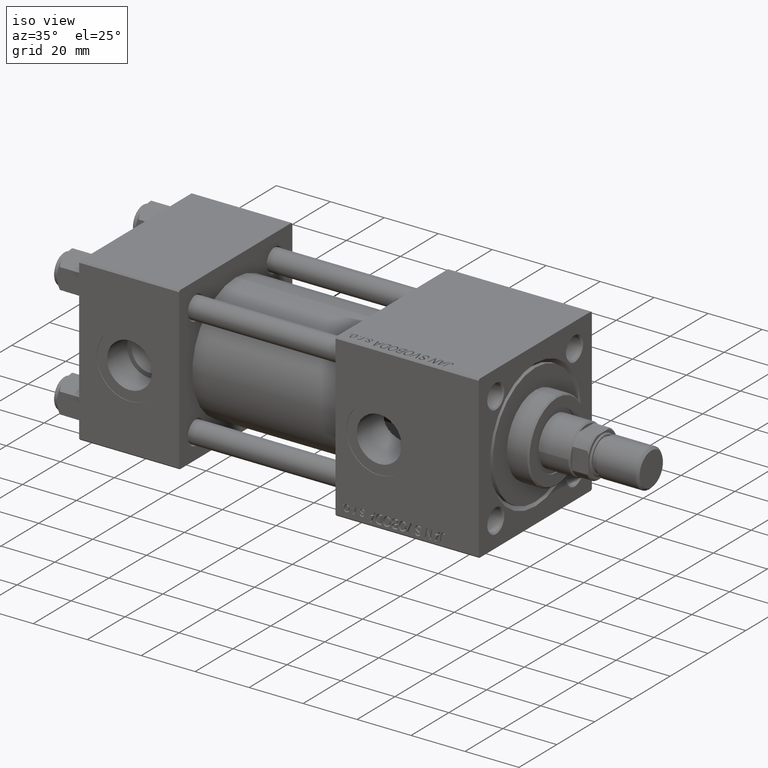
[diagram: clean part render]
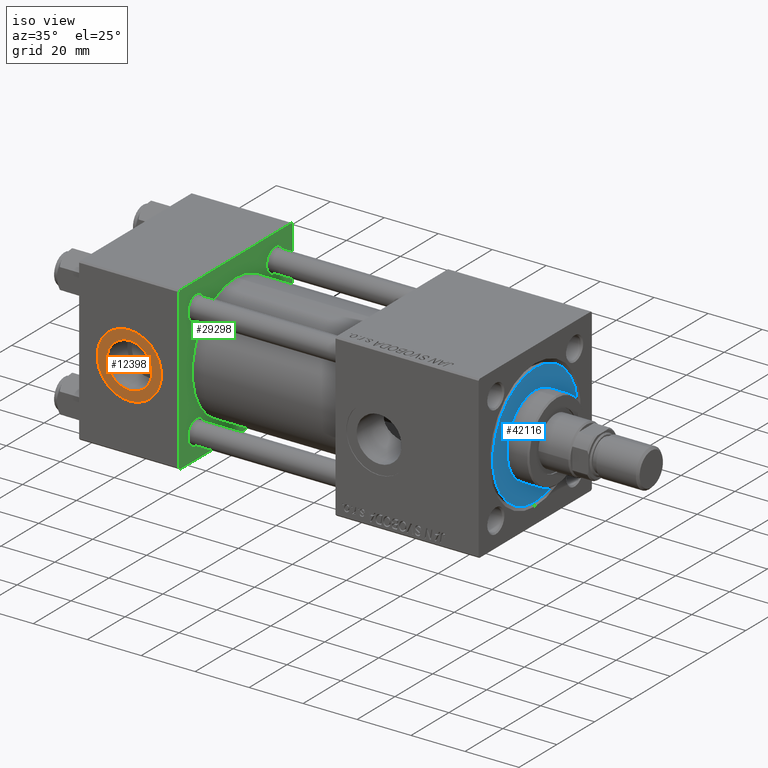
[diagram: same view with three faces highlighted in distinct colors, each labeled with its STEP entity id]
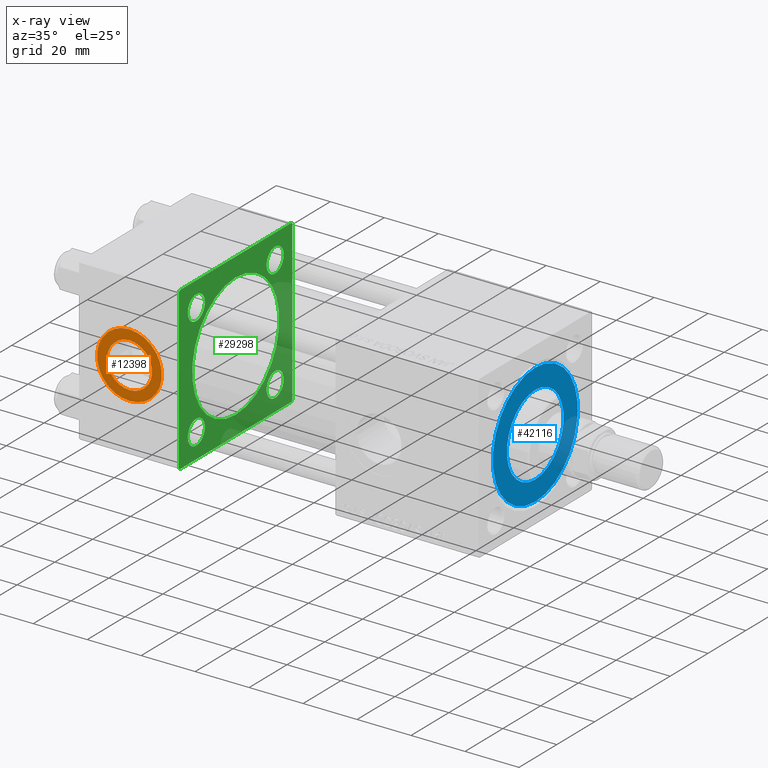
[diagram: x-ray of the same camera — body ghosted, the three highlighted faces saturated]
A machine part, iso view with three faces highlighted in distinct colors.
The next image is the same camera in x-ray (body ghosted, the three faces saturated) — at least one of them is partly hidden behind the body in this view.
Their STEP definitions:

[orange] entity #12398 — the highlighted planar face has unit normal (0, -1, -0).
#3215 = DIRECTION ( 'NONE',  ( 0.000000000000000000, -1.000000000000000000, -8.673617379884036705E-17 ) ) ;
#3545 = AXIS2_PLACEMENT_3D ( 'NONE', #35167, #51462, #7973 ) ;
#4369 = DIRECTION ( 'NONE',  ( 0.000000000000000000, 0.000000000000000000, -1.000000000000000000 ) ) ;
#4836 = ORIENTED_EDGE ( 'NONE', *, *, #43128, .T. ) ;
#5117 = DIRECTION ( 'NONE',  ( 0.000000000000000000, 8.673617379884036705E-17, -1.000000000000000000 ) ) ;
#7575 = DIRECTION ( 'NONE',  ( 0.000000000000000000, -1.000000000000000000, -8.673617379884036705E-17 ) ) ;
#7973 = DIRECTION ( 'NONE',  ( 0.000000000000000000, 0.000000000000000000, -1.000000000000000000 ) ) ;
#7995 = VERTEX_POINT ( 'NONE', #10125 ) ;
#9300 = AXIS2_PLACEMENT_3D ( 'NONE', #44113, #7575, #4369 ) ;
#10125 = CARTESIAN_POINT ( 'NONE',  ( 18.50000000000000000, -29.80000000000000071, 8.330000000000001847 ) ) ;
#10163 = CIRCLE ( 'NONE', #9300, 8.330000000000001847 ) ;
#11229 = CARTESIAN_POINT ( 'NONE',  ( 18.50000000000000000, -29.80000000000000071, 1.734723475976807403E-17 ) ) ;
#12087 = VERTEX_POINT ( 'NONE', #17417 ) ;
#12398 = ADVANCED_FACE ( 'NONE', ( #28858, #16336 ), #20608, .T. ) ;
#14922 = EDGE_LOOP ( 'NONE', ( #22571, #32532 ) ) ;
#16336 = FACE_OUTER_BOUND ( 'NONE', #34859, .T. ) ;
#16886 = AXIS2_PLACEMENT_3D ( 'NONE', #24861, #41662, #5117 ) ;
#17417 = CARTESIAN_POINT ( 'NONE',  ( 18.50000000000000000, -29.80000000000000071, -8.330000000000001847 ) ) ;
#18570 = CARTESIAN_POINT ( 'NONE',  ( 18.50000000000000000, -29.80000000000000071, 12.00000000000000178 ) ) ;
#20608 = PLANE ( 'NONE',  #16886 ) ;
#22571 = ORIENTED_EDGE ( 'NONE', *, *, #28507, .F. ) ;
#24861 = CARTESIAN_POINT ( 'NONE',  ( 18.50000000000000000, -29.80000000000000071, 1.734723475976807403E-17 ) ) ;
#25349 = DIRECTION ( 'NONE',  ( 0.000000000000000000, 0.000000000000000000, -1.000000000000000000 ) ) ;
#27986 = CARTESIAN_POINT ( 'NONE',  ( 18.50000000000000000, -29.80000000000000071, -12.00000000000000178 ) ) ;
#28474 = AXIS2_PLACEMENT_3D ( 'NONE', #41369, #33102, #25349 ) ;
#28507 = EDGE_CURVE ( 'NONE', #12087, #7995, #10163, .T. ) ;
#28858 = FACE_BOUND ( 'NONE', #14922, .T. ) ;
#32532 = ORIENTED_EDGE ( 'NONE', *, *, #43392, .F. ) ;
#33102 = DIRECTION ( 'NONE',  ( 0.000000000000000000, -1.000000000000000000, -8.673617379884036705E-17 ) ) ;
#34353 = CIRCLE ( 'NONE', #47994, 12.00000000000000178 ) ;
#34859 = EDGE_LOOP ( 'NONE', ( #4836, #40473 ) ) ;
#35167 = CARTESIAN_POINT ( 'NONE',  ( 18.50000000000000000, -29.80000000000000071, 1.734723475976807403E-17 ) ) ;
#35268 = CIRCLE ( 'NONE', #28474, 8.330000000000001847 ) ;
#40473 = ORIENTED_EDGE ( 'NONE', *, *, #49544, .T. ) ;
#41369 = CARTESIAN_POINT ( 'NONE',  ( 18.50000000000000000, -29.80000000000000071, 1.734723475976808635E-17 ) ) ;
#41662 = DIRECTION ( 'NONE',  ( 0.000000000000000000, -1.000000000000000000, -8.673617379884036705E-17 ) ) ;
#42753 = VERTEX_POINT ( 'NONE', #18570 ) ;
#43128 = EDGE_CURVE ( 'NONE', #45244, #42753, #34353, .T. ) ;
#43392 = EDGE_CURVE ( 'NONE', #7995, #12087, #35268, .T. ) ;
#44028 = DIRECTION ( 'NONE',  ( 0.000000000000000000, 0.000000000000000000, -1.000000000000000000 ) ) ;
#44113 = CARTESIAN_POINT ( 'NONE',  ( 18.50000000000000000, -29.80000000000000071, 1.734723475976808635E-17 ) ) ;
#45244 = VERTEX_POINT ( 'NONE', #27986 ) ;
#45301 = CIRCLE ( 'NONE', #3545, 12.00000000000000178 ) ;
#47994 = AXIS2_PLACEMENT_3D ( 'NONE', #11229, #3215, #44028 ) ;
#49544 = EDGE_CURVE ( 'NONE', #42753, #45244, #45301, .T. ) ;
#51462 = DIRECTION ( 'NONE',  ( 0.000000000000000000, -1.000000000000000000, -8.673617379884036705E-17 ) ) ;

[blue] entity #42116 — the highlighted planar face has unit normal (1, 0, 0).
#1508 = CIRCLE ( 'NONE', #21123, 22.50000000000000355 ) ;
#3321 = ORIENTED_EDGE ( 'NONE', *, *, #42093, .F. ) ;
#4949 = DIRECTION ( 'NONE',  ( 1.000000000000000000, 0.000000000000000000, 0.000000000000000000 ) ) ;
#6687 = DIRECTION ( 'NONE',  ( 1.000000000000000000, 0.000000000000000000, 0.000000000000000000 ) ) ;
#8089 = ORIENTED_EDGE ( 'NONE', *, *, #11650, .T. ) ;
#8323 = VERTEX_POINT ( 'NONE', #13038 ) ;
#10700 = DIRECTION ( 'NONE',  ( 0.000000000000000000, 0.000000000000000000, 1.000000000000000000 ) ) ;
#10742 = AXIS2_PLACEMENT_3D ( 'NONE', #42015, #12970, #4949 ) ;
#11391 = VERTEX_POINT ( 'NONE', #47169 ) ;
#11650 = EDGE_CURVE ( 'NONE', #11391, #8323, #1508, .T. ) ;
#12970 = DIRECTION ( 'NONE',  ( 0.000000000000000000, 0.000000000000000000, 1.000000000000000000 ) ) ;
#13038 = CARTESIAN_POINT ( 'NONE',  ( 22.50000000000000355, 2.755455298081545172E-15, 28.69999999999999929 ) ) ;
#14755 = CIRCLE ( 'NONE', #21580, 15.00000000000000000 ) ;
#15881 = AXIS2_PLACEMENT_3D ( 'NONE', #26597, #29091, #17101 ) ;
#17101 = DIRECTION ( 'NONE',  ( 1.000000000000000000, 0.000000000000000000, 0.000000000000000000 ) ) ;
#19105 = DIRECTION ( 'NONE',  ( 0.000000000000000000, 0.000000000000000000, 1.000000000000000000 ) ) ;
#20033 = CARTESIAN_POINT ( 'NONE',  ( 15.00000000000000000, 1.836970198721029589E-15, 28.69999999999999929 ) ) ;
#21123 = AXIS2_PLACEMENT_3D ( 'NONE', #27111, #19105, #51653 ) ;
#21580 = AXIS2_PLACEMENT_3D ( 'NONE', #43234, #10700, #6687 ) ;
#21991 = EDGE_CURVE ( 'NONE', #31963, #48989, #33733, .T. ) ;
#22531 = EDGE_CURVE ( 'NONE', #8323, #11391, #38872, .T. ) ;
#26597 = CARTESIAN_POINT ( 'NONE',  ( 0.000000000000000000, 0.000000000000000000, 28.69999999999999929 ) ) ;
#27111 = CARTESIAN_POINT ( 'NONE',  ( 0.000000000000000000, 0.000000000000000000, 28.69999999999999929 ) ) ;
#27488 = PLANE ( 'NONE',  #29231 ) ;
#28087 = ORIENTED_EDGE ( 'NONE', *, *, #21991, .F. ) ;
#29091 = DIRECTION ( 'NONE',  ( 0.000000000000000000, 0.000000000000000000, 1.000000000000000000 ) ) ;
#29231 = AXIS2_PLACEMENT_3D ( 'NONE', #52297, #36002, #43761 ) ;
#31963 = VERTEX_POINT ( 'NONE', #50412 ) ;
#33733 = CIRCLE ( 'NONE', #10742, 15.00000000000000000 ) ;
#36002 = DIRECTION ( 'NONE',  ( 0.000000000000000000, 0.000000000000000000, 1.000000000000000000 ) ) ;
#38872 = CIRCLE ( 'NONE', #15881, 22.50000000000000355 ) ;
#38998 = EDGE_LOOP ( 'NONE', ( #28087, #3321 ) ) ;
#42015 = CARTESIAN_POINT ( 'NONE',  ( 0.000000000000000000, 0.000000000000000000, 28.69999999999999929 ) ) ;
#42093 = EDGE_CURVE ( 'NONE', #48989, #31963, #14755, .T. ) ;
#42116 = ADVANCED_FACE ( 'NONE', ( #47489, #47759 ), #27488, .T. ) ;
#43234 = CARTESIAN_POINT ( 'NONE',  ( 0.000000000000000000, 0.000000000000000000, 28.69999999999999929 ) ) ;
#43761 = DIRECTION ( 'NONE',  ( 1.000000000000000000, 0.000000000000000000, -0.000000000000000000 ) ) ;
#45749 = ORIENTED_EDGE ( 'NONE', *, *, #22531, .T. ) ;
#47169 = CARTESIAN_POINT ( 'NONE',  ( -22.50000000000000355, 0.000000000000000000, 28.69999999999999929 ) ) ;
#47399 = EDGE_LOOP ( 'NONE', ( #8089, #45749 ) ) ;
#47489 = FACE_BOUND ( 'NONE', #38998, .T. ) ;
#47759 = FACE_OUTER_BOUND ( 'NONE', #47399, .T. ) ;
#48989 = VERTEX_POINT ( 'NONE', #20033 ) ;
#50412 = CARTESIAN_POINT ( 'NONE',  ( -15.00000000000000000, 0.000000000000000000, 28.69999999999999929 ) ) ;
#51653 = DIRECTION ( 'NONE',  ( 1.000000000000000000, 0.000000000000000000, 0.000000000000000000 ) ) ;
#52297 = CARTESIAN_POINT ( 'NONE',  ( 0.000000000000000000, 0.000000000000000000, 28.69999999999999929 ) ) ;

[green] entity #29298 — the highlighted planar face has unit normal (-1, 0, 0).
#190 = EDGE_CURVE ( 'NONE', #50506, #25344, #20826, .T. ) ;
#527 = CARTESIAN_POINT ( 'NONE',  ( 37.00000000000000000, -20.84999999999999076, 16.35000000000001208 ) ) ;
#605 = CARTESIAN_POINT ( 'NONE',  ( 37.00000000000000000, -30.00000000000000000, -29.50000000000001776 ) ) ;
#688 = LINE ( 'NONE', #45745, #34682 ) ;
#993 = ORIENTED_EDGE ( 'NONE', *, *, #4302, .T. ) ;
#1036 = CARTESIAN_POINT ( 'NONE',  ( 37.00000000000000000, 20.84999999999999787, -16.35000000000001208 ) ) ;
#1368 = CARTESIAN_POINT ( 'NONE',  ( 37.00000000000000000, -30.00000000000000000, 29.99999999999999289 ) ) ;
#1494 = CARTESIAN_POINT ( 'NONE',  ( 37.00000000000000000, 29.99999999999999289, -30.00000000000000000 ) ) ;
#1668 = LINE ( 'NONE', #33927, #22113 ) ;
#1689 = CIRCLE ( 'NONE', #17046, 4.499999999999990230 ) ;
#2656 = CARTESIAN_POINT ( 'NONE',  ( 37.00000000000000000, 29.49999999999999289, 30.00000000000000000 ) ) ;
#2994 = EDGE_CURVE ( 'NONE', #3972, #27845, #38028, .T. ) ;
#3972 = VERTEX_POINT ( 'NONE', #43241 ) ;
#4128 = ORIENTED_EDGE ( 'NONE', *, *, #41881, .F. ) ;
#4302 = EDGE_CURVE ( 'NONE', #46322, #36450, #40574, .T. ) ;
#4324 = CIRCLE ( 'NONE', #28909, 4.499999999999990230 ) ;
#5024 = CIRCLE ( 'NONE', #41658, 23.00000000000000000 ) ;
#5026 = EDGE_CURVE ( 'NONE', #49231, #17959, #35173, .T. ) ;
#5208 = DIRECTION ( 'NONE',  ( -1.000000000000000000, 0.000000000000000000, -0.000000000000000000 ) ) ;
#5225 = ORIENTED_EDGE ( 'NONE', *, *, #10985, .T. ) ;
#5246 = CARTESIAN_POINT ( 'NONE',  ( 37.00000000000000000, 29.99999999999999289, 30.00000000000000000 ) ) ;
#5542 = PLANE ( 'NONE',  #11003 ) ;
#6259 = EDGE_LOOP ( 'NONE', ( #47578, #24967 ) ) ;
#6333 = AXIS2_PLACEMENT_3D ( 'NONE', #25252, #8470, #16201 ) ;
#6752 = CARTESIAN_POINT ( 'NONE',  ( 37.00000000000000000, 20.84999999999999787, -25.34999999999999076 ) ) ;
#6862 = ORIENTED_EDGE ( 'NONE', *, *, #33014, .T. ) ;
#7371 = EDGE_CURVE ( 'NONE', #36450, #46322, #20941, .T. ) ;
#7706 = CARTESIAN_POINT ( 'NONE',  ( 37.00000000000000000, 20.84999999999999787, 25.34999999999999076 ) ) ;
#8215 = DIRECTION ( 'NONE',  ( 0.000000000000000000, -1.000000000000000000, -1.156482317317871725E-16 ) ) ;
#8297 = CARTESIAN_POINT ( 'NONE',  ( 37.00000000000000000, 20.84999999999999787, 20.85000000000000142 ) ) ;
#8470 = DIRECTION ( 'NONE',  ( -1.000000000000000000, 0.000000000000000000, -0.000000000000000000 ) ) ;
#8618 = CARTESIAN_POINT ( 'NONE',  ( 37.00000000000000000, -2.602085213965210642E-15, 0.000000000000000000 ) ) ;
#9207 = DIRECTION ( 'NONE',  ( 0.000000000000000000, 0.7071067811865474617, -0.7071067811865474617 ) ) ;
#9959 = EDGE_CURVE ( 'NONE', #25344, #50506, #36371, .T. ) ;
#10258 = CARTESIAN_POINT ( 'NONE',  ( 37.00000000000000000, -20.84999999999999076, 20.85000000000000497 ) ) ;
#10333 = CARTESIAN_POINT ( 'NONE',  ( 37.00000000000000000, 0.000000000000000000, 0.000000000000000000 ) ) ;
#10985 = EDGE_CURVE ( 'NONE', #47972, #27845, #688, .T. ) ;
#11003 = AXIS2_PLACEMENT_3D ( 'NONE', #10333, #21810, #18859 ) ;
#12184 = ORIENTED_EDGE ( 'NONE', *, *, #5026, .T. ) ;
#12551 = CARTESIAN_POINT ( 'NONE',  ( 37.00000000000000000, 29.99999999999999289, 30.00000000000000000 ) ) ;
#12894 = EDGE_CURVE ( 'NONE', #32127, #25630, #14323, .T. ) ;
#13740 = DIRECTION ( 'NONE',  ( 0.000000000000000000, 0.000000000000000000, 1.000000000000000000 ) ) ;
#14323 = CIRCLE ( 'NONE', #44141, 4.499999999999990230 ) ;
#15208 = VERTEX_POINT ( 'NONE', #39763 ) ;
#15481 = DIRECTION ( 'NONE',  ( 0.000000000000000000, 0.000000000000000000, -1.000000000000000000 ) ) ;
#16201 = DIRECTION ( 'NONE',  ( 0.000000000000000000, 0.000000000000000000, 1.000000000000000000 ) ) ;
#16513 = VERTEX_POINT ( 'NONE', #1036 ) ;
#16716 = ORIENTED_EDGE ( 'NONE', *, *, #33513, .F. ) ;
#17046 = AXIS2_PLACEMENT_3D ( 'NONE', #8297, #20558, #41089 ) ;
#17766 = DIRECTION ( 'NONE',  ( 0.000000000000000000, -1.000000000000000000, -1.156482317317871725E-16 ) ) ;
#17959 = VERTEX_POINT ( 'NONE', #38308 ) ;
#17974 = CARTESIAN_POINT ( 'NONE',  ( 37.00000000000000000, 2.146024240737012665E-16, -23.00000000000000000 ) ) ;
#18097 = CARTESIAN_POINT ( 'NONE',  ( 37.00000000000000000, 20.84999999999999787, 16.35000000000001208 ) ) ;
#18150 = AXIS2_PLACEMENT_3D ( 'NONE', #8618, #45671, #36608 ) ;
#18272 = ORIENTED_EDGE ( 'NONE', *, *, #7371, .T. ) ;
#18623 = EDGE_CURVE ( 'NONE', #16513, #38263, #4324, .T. ) ;
#18859 = DIRECTION ( 'NONE',  ( -0.000000000000000000, 0.000000000000000000, 1.000000000000000000 ) ) ;
#19609 = EDGE_CURVE ( 'NONE', #25630, #32127, #1689, .T. ) ;
#20207 = EDGE_CURVE ( 'NONE', #3972, #15208, #1668, .T. ) ;
#20491 = DIRECTION ( 'NONE',  ( 0.000000000000000000, 0.000000000000000000, 1.000000000000000000 ) ) ;
#20558 = DIRECTION ( 'NONE',  ( -1.000000000000000000, 0.000000000000000000, -0.000000000000000000 ) ) ;
#20826 = CIRCLE ( 'NONE', #6333, 4.499999999999990230 ) ;
#20883 = CARTESIAN_POINT ( 'NONE',  ( 37.00000000000000000, -20.84999999999999076, -20.85000000000000497 ) ) ;
#20928 = ORIENTED_EDGE ( 'NONE', *, *, #44477, .T. ) ;
#20941 = CIRCLE ( 'NONE', #52448, 4.499999999999990230 ) ;
#21063 = ORIENTED_EDGE ( 'NONE', *, *, #32991, .T. ) ;
#21681 = EDGE_LOOP ( 'NONE', ( #993, #18272 ) ) ;
#21810 = DIRECTION ( 'NONE',  ( -1.000000000000000000, 0.000000000000000000, -0.000000000000000000 ) ) ;
#22113 = VECTOR ( 'NONE', #26191, 999.9999999999998863 ) ;
#22324 = FACE_BOUND ( 'NONE', #6259, .T. ) ;
#23215 = CARTESIAN_POINT ( 'NONE',  ( 37.00000000000000000, 20.84999999999999787, -20.85000000000000142 ) ) ;
#23321 = EDGE_LOOP ( 'NONE', ( #40800, #42545, #16716, #12184, #21063, #20928, #44196, #5225 ) ) ;
#23814 = CIRCLE ( 'NONE', #26371, 4.499999999999990230 ) ;
#24053 = EDGE_LOOP ( 'NONE', ( #6862, #34400 ) ) ;
#24250 = EDGE_CURVE ( 'NONE', #29363, #47972, #37632, .T. ) ;
#24466 = DIRECTION ( 'NONE',  ( -1.000000000000000000, 0.000000000000000000, -0.000000000000000000 ) ) ;
#24967 = ORIENTED_EDGE ( 'NONE', *, *, #12894, .T. ) ;
#24970 = CIRCLE ( 'NONE', #18150, 23.00000000000000000 ) ;
#25133 = DIRECTION ( 'NONE',  ( -1.000000000000000000, 0.000000000000000000, -0.000000000000000000 ) ) ;
#25252 = CARTESIAN_POINT ( 'NONE',  ( 37.00000000000000000, -20.84999999999999076, -20.85000000000000497 ) ) ;
#25268 = AXIS2_PLACEMENT_3D ( 'NONE', #49503, #5208, #49763 ) ;
#25289 = VECTOR ( 'NONE', #33632, 1000.000000000000000 ) ;
#25344 = VERTEX_POINT ( 'NONE', #27733 ) ;
#25630 = VERTEX_POINT ( 'NONE', #18097 ) ;
#25997 = DIRECTION ( 'NONE',  ( -1.000000000000000000, 0.000000000000000000, -0.000000000000000000 ) ) ;
#26191 = DIRECTION ( 'NONE',  ( -0.000000000000000000, 0.7071067811865574537, 0.7071067811865376918 ) ) ;
#26206 = VERTEX_POINT ( 'NONE', #17974 ) ;
#26371 = AXIS2_PLACEMENT_3D ( 'NONE', #40747, #24466, #37527 ) ;
#26651 = CARTESIAN_POINT ( 'NONE',  ( 37.00000000000000000, -2.602085213965210642E-15, 0.000000000000000000 ) ) ;
#27134 = LINE ( 'NONE', #43139, #47105 ) ;
#27733 = CARTESIAN_POINT ( 'NONE',  ( 37.00000000000000000, -20.84999999999999076, -25.34999999999999432 ) ) ;
#27845 = VERTEX_POINT ( 'NONE', #31236 ) ;
#27913 = CARTESIAN_POINT ( 'NONE',  ( 37.00000000000000000, -20.84999999999999076, -16.35000000000001208 ) ) ;
#28048 = VECTOR ( 'NONE', #8215, 1000.000000000000000 ) ;
#28909 = AXIS2_PLACEMENT_3D ( 'NONE', #23215, #39489, #20491 ) ;
#29298 = ADVANCED_FACE ( 'NONE', ( #42609, #30858, #47390, #22324, #42088, #39126 ), #5542, .F. ) ;
#29363 = VERTEX_POINT ( 'NONE', #52459 ) ;
#29480 = ORIENTED_EDGE ( 'NONE', *, *, #32012, .F. ) ;
#29556 = AXIS2_PLACEMENT_3D ( 'NONE', #20883, #25133, #52625 ) ;
#30648 = CARTESIAN_POINT ( 'NONE',  ( 37.00000000000000000, 29.99999999999999289, 29.50000000000000000 ) ) ;
#30858 = FACE_BOUND ( 'NONE', #24053, .T. ) ;
#31236 = CARTESIAN_POINT ( 'NONE',  ( 37.00000000000000000, -29.50000000000000000, -30.00000000000000711 ) ) ;
#32012 = EDGE_CURVE ( 'NONE', #26206, #33256, #5024, .T. ) ;
#32127 = VERTEX_POINT ( 'NONE', #7706 ) ;
#32646 = EDGE_LOOP ( 'NONE', ( #4128, #29480 ) ) ;
#32991 = EDGE_CURVE ( 'NONE', #17959, #43869, #49019, .T. ) ;
#33014 = EDGE_CURVE ( 'NONE', #38263, #16513, #23814, .T. ) ;
#33256 = VERTEX_POINT ( 'NONE', #37649 ) ;
#33513 = EDGE_CURVE ( 'NONE', #49231, #15208, #44823, .T. ) ;
#33632 = DIRECTION ( 'NONE',  ( 0.000000000000000000, 0.000000000000000000, -1.000000000000000000 ) ) ;
#33781 = DIRECTION ( 'NONE',  ( -1.000000000000000000, 0.000000000000000000, -0.000000000000000000 ) ) ;
#33927 = CARTESIAN_POINT ( 'NONE',  ( 37.00000000000000000, 29.99999999999999289, -29.50000000000000000 ) ) ;
#34037 = DIRECTION ( 'NONE',  ( 0.000000000000000000, 0.000000000000000000, 1.000000000000000000 ) ) ;
#34400 = ORIENTED_EDGE ( 'NONE', *, *, #18623, .T. ) ;
#34682 = VECTOR ( 'NONE', #9207, 1000.000000000000114 ) ;
#34831 = ORIENTED_EDGE ( 'NONE', *, *, #190, .T. ) ;
#35173 = LINE ( 'NONE', #2656, #43997 ) ;
#35964 = DIRECTION ( 'NONE',  ( 0.000000000000000000, -0.7071067811865474617, 0.7071067811865474617 ) ) ;
#36371 = CIRCLE ( 'NONE', #29556, 4.499999999999990230 ) ;
#36450 = VERTEX_POINT ( 'NONE', #42494 ) ;
#36608 = DIRECTION ( 'NONE',  ( 0.000000000000000000, 0.000000000000000000, 1.000000000000000000 ) ) ;
#37185 = EDGE_LOOP ( 'NONE', ( #41771, #34831 ) ) ;
#37429 = CARTESIAN_POINT ( 'NONE',  ( 37.00000000000000000, -29.49999999999998579, 29.99999999999999289 ) ) ;
#37527 = DIRECTION ( 'NONE',  ( 0.000000000000000000, 0.000000000000000000, 1.000000000000000000 ) ) ;
#37632 = LINE ( 'NONE', #1368, #25289 ) ;
#37649 = CARTESIAN_POINT ( 'NONE',  ( 37.00000000000000000, -2.602085213965210642E-15, 23.00000000000000000 ) ) ;
#38028 = LINE ( 'NONE', #1494, #39648 ) ;
#38263 = VERTEX_POINT ( 'NONE', #6752 ) ;
#38308 = CARTESIAN_POINT ( 'NONE',  ( 37.00000000000000000, 29.49999999999999289, 30.00000000000000000 ) ) ;
#39126 = FACE_OUTER_BOUND ( 'NONE', #23321, .T. ) ;
#39489 = DIRECTION ( 'NONE',  ( -1.000000000000000000, 0.000000000000000000, -0.000000000000000000 ) ) ;
#39648 = VECTOR ( 'NONE', #17766, 1000.000000000000000 ) ;
#39763 = CARTESIAN_POINT ( 'NONE',  ( 37.00000000000000000, 29.99999999999999289, -29.50000000000000000 ) ) ;
#40574 = CIRCLE ( 'NONE', #25268, 4.499999999999990230 ) ;
#40747 = CARTESIAN_POINT ( 'NONE',  ( 37.00000000000000000, 20.84999999999999787, -20.85000000000000142 ) ) ;
#40800 = ORIENTED_EDGE ( 'NONE', *, *, #2994, .F. ) ;
#41089 = DIRECTION ( 'NONE',  ( 0.000000000000000000, 0.000000000000000000, 1.000000000000000000 ) ) ;
#41658 = AXIS2_PLACEMENT_3D ( 'NONE', #26651, #47965, #43708 ) ;
#41771 = ORIENTED_EDGE ( 'NONE', *, *, #9959, .T. ) ;
#41881 = EDGE_CURVE ( 'NONE', #33256, #26206, #24970, .T. ) ;
#42088 = FACE_BOUND ( 'NONE', #32646, .T. ) ;
#42349 = DIRECTION ( 'NONE',  ( -0.000000000000000000, -0.7071067811865474617, -0.7071067811865474617 ) ) ;
#42494 = CARTESIAN_POINT ( 'NONE',  ( 37.00000000000000000, -20.84999999999999076, 25.34999999999999432 ) ) ;
#42545 = ORIENTED_EDGE ( 'NONE', *, *, #20207, .T. ) ;
#42609 = FACE_BOUND ( 'NONE', #37185, .T. ) ;
#43139 = CARTESIAN_POINT ( 'NONE',  ( 37.00000000000000000, -30.00000000000000000, 29.49999999999999289 ) ) ;
#43241 = CARTESIAN_POINT ( 'NONE',  ( 37.00000000000000000, 29.49999999999997868, -30.00000000000000000 ) ) ;
#43708 = DIRECTION ( 'NONE',  ( 0.000000000000000000, 0.000000000000000000, 1.000000000000000000 ) ) ;
#43869 = VERTEX_POINT ( 'NONE', #37429 ) ;
#43997 = VECTOR ( 'NONE', #35964, 1000.000000000000114 ) ;
#44141 = AXIS2_PLACEMENT_3D ( 'NONE', #46053, #33781, #34037 ) ;
#44196 = ORIENTED_EDGE ( 'NONE', *, *, #24250, .T. ) ;
#44477 = EDGE_CURVE ( 'NONE', #43869, #29363, #27134, .T. ) ;
#44823 = LINE ( 'NONE', #12551, #45131 ) ;
#45131 = VECTOR ( 'NONE', #15481, 1000.000000000000000 ) ;
#45671 = DIRECTION ( 'NONE',  ( 1.000000000000000000, -0.000000000000000000, 0.000000000000000000 ) ) ;
#45745 = CARTESIAN_POINT ( 'NONE',  ( 37.00000000000000000, -29.50000000000001066, -30.00000000000000711 ) ) ;
#46053 = CARTESIAN_POINT ( 'NONE',  ( 37.00000000000000000, 20.84999999999999787, 20.85000000000000142 ) ) ;
#46322 = VERTEX_POINT ( 'NONE', #527 ) ;
#47105 = VECTOR ( 'NONE', #42349, 1000.000000000000114 ) ;
#47390 = FACE_BOUND ( 'NONE', #21681, .T. ) ;
#47578 = ORIENTED_EDGE ( 'NONE', *, *, #19609, .T. ) ;
#47965 = DIRECTION ( 'NONE',  ( 1.000000000000000000, -0.000000000000000000, 0.000000000000000000 ) ) ;
#47972 = VERTEX_POINT ( 'NONE', #605 ) ;
#49019 = LINE ( 'NONE', #5246, #28048 ) ;
#49231 = VERTEX_POINT ( 'NONE', #30648 ) ;
#49503 = CARTESIAN_POINT ( 'NONE',  ( 37.00000000000000000, -20.84999999999999076, 20.85000000000000497 ) ) ;
#49763 = DIRECTION ( 'NONE',  ( 0.000000000000000000, 0.000000000000000000, 1.000000000000000000 ) ) ;
#50506 = VERTEX_POINT ( 'NONE', #27913 ) ;
#52448 = AXIS2_PLACEMENT_3D ( 'NONE', #10258, #25997, #13740 ) ;
#52459 = CARTESIAN_POINT ( 'NONE',  ( 37.00000000000000000, -30.00000000000000000, 29.49999999999999289 ) ) ;
#52625 = DIRECTION ( 'NONE',  ( 0.000000000000000000, 0.000000000000000000, 1.000000000000000000 ) ) ;